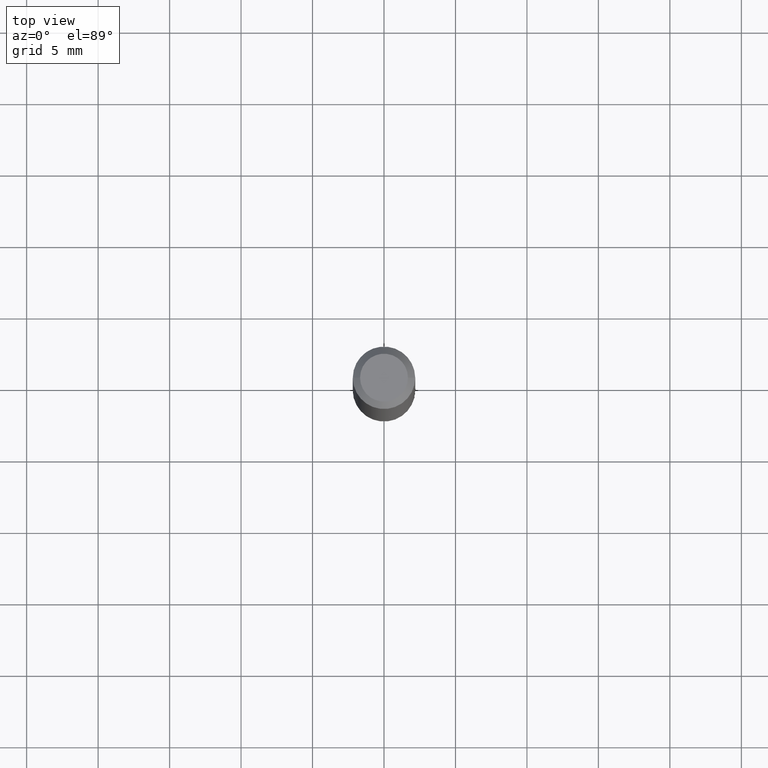
[diagram: clean part render]
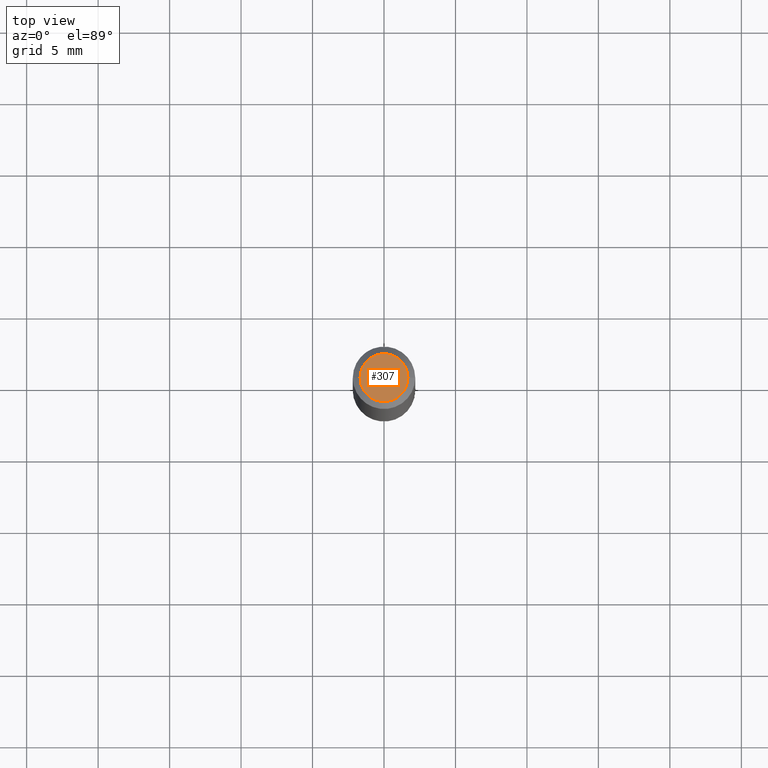
[diagram: same view with one face highlighted and labeled with its STEP entity id]
A machine part, top view. The second image highlights one B-rep face of the part: STEP entity #307.
In plain terms, the highlighted planar face has unit normal (0, -0, -1).
Its self-contained STEP definition (entity closure, byte-faithful):
#4 = CARTESIAN_POINT ( 'NONE',  ( 0.06594999999999982820, -5.559696363191780784E-16, 3.553944287850914187E-30 ) ) ;
#7 = AXIS2_PLACEMENT_3D ( 'NONE', #299, #51, #78 ) ;
#29 = FACE_OUTER_BOUND ( 'NONE', #321, .T. ) ;
#36 = ORIENTED_EDGE ( 'NONE', *, *, #318, .T. ) ;
#51 = DIRECTION ( 'NONE',  ( -2.445468806185136597E-29, 3.491481338843145583E-15, 1.000000000000000000 ) ) ;
#76 = CIRCLE ( 'NONE', #314, 0.06594999999999982820 ) ;
#78 = DIRECTION ( 'NONE',  ( 1.000000000000000000, -6.982962677686267499E-15, 4.876176775795935793E-29 ) ) ;
#103 = VERTEX_POINT ( 'NONE', #331 ) ;
#104 = DIRECTION ( 'NONE',  ( 2.438088387897960049E-29, -3.491481338843145188E-15, -1.000000000000000000 ) ) ;
#109 = CARTESIAN_POINT ( 'NONE',  ( 4.605263885934080242E-16, 0.06594999999999982820, -2.302631942967048503E-16 ) ) ;
#126 = VERTEX_POINT ( 'NONE', #4 ) ;
#163 = CARTESIAN_POINT ( 'NONE',  ( 0.000000000000000000, 0.000000000000000000, 0.000000000000000000 ) ) ;
#181 = CIRCLE ( 'NONE', #7, 0.06594999999999982820 ) ;
#228 = DIRECTION ( 'NONE',  ( 1.000000000000000000, -6.982962677686267499E-15, 4.876176775795935793E-29 ) ) ;
#232 = DIRECTION ( 'NONE',  ( -2.445468806185136597E-29, 3.491481338843145583E-15, 1.000000000000000000 ) ) ;
#250 = AXIS2_PLACEMENT_3D ( 'NONE', #109, #104, #390 ) ;
#299 = CARTESIAN_POINT ( 'NONE',  ( 0.000000000000000000, 0.000000000000000000, 0.000000000000000000 ) ) ;
#307 = ADVANCED_FACE ( 'NONE', ( #29 ), #387, .F. ) ;
#314 = AXIS2_PLACEMENT_3D ( 'NONE', #163, #232, #228 ) ;
#315 = EDGE_CURVE ( 'NONE', #126, #103, #181, .T. ) ;
#318 = EDGE_CURVE ( 'NONE', #103, #126, #76, .T. ) ;
#321 = EDGE_LOOP ( 'NONE', ( #36, #383 ) ) ;
#331 = CARTESIAN_POINT ( 'NONE',  ( -0.06594999999999982820, 4.954412019818392789E-16, -3.342610388892703263E-30 ) ) ;
#383 = ORIENTED_EDGE ( 'NONE', *, *, #315, .T. ) ;
#387 = PLANE ( 'NONE',  #250 ) ;
#390 = DIRECTION ( 'NONE',  ( -1.000000000000000000, 6.982962677686265922E-15, -4.876176775795935793E-29 ) ) ;